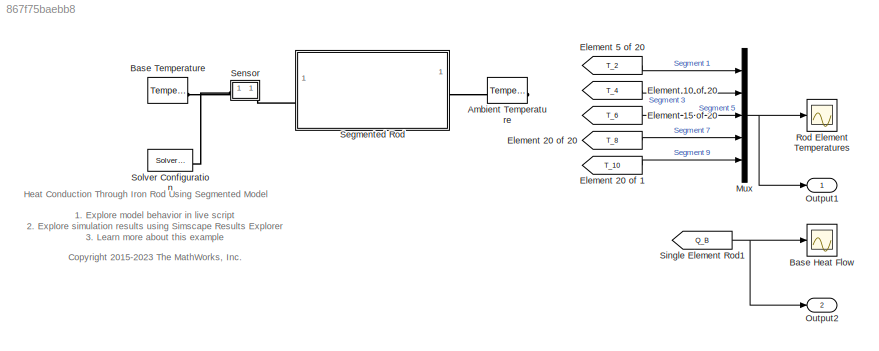
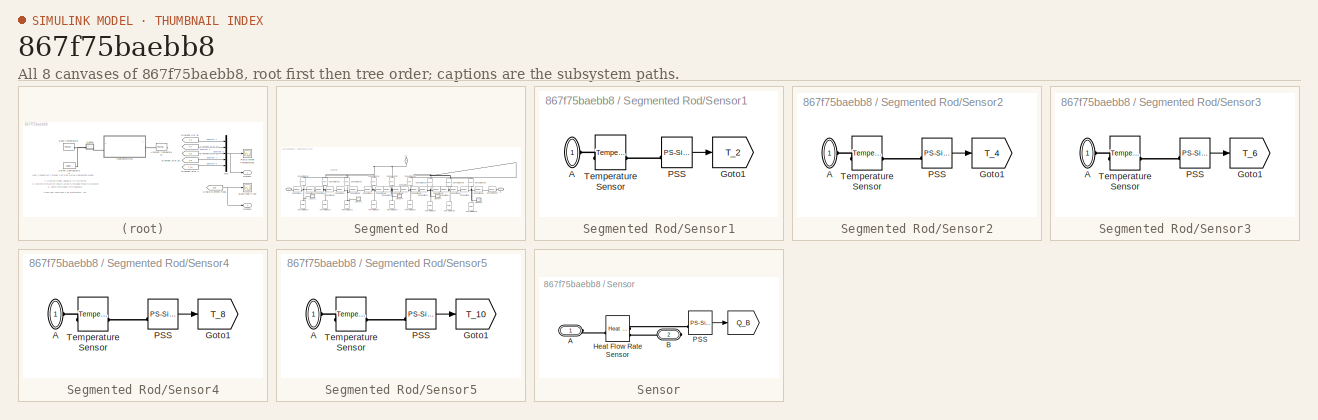
[diagram: thumbnail index - all 8 canvases of the model, root first then tree order]
MODEL slx_867f75baebb8
KIND model
CONFIG AbsTol = 1e-3
CONFIG EnableMultiTasking = on
CONFIG FixedStep = auto
CONFIG MaxStep = 100
CONFIG MinStep = auto
CONFIG PreLoadFcn = if ~exist('D', 'var')            D= 0.025;         end % [m]\nif ~exist('L', 'var')            L= 0.2;           end % [m]\nif ~exist('A', 'var')            A= pi*D^2/4;      end % [m^2]\nif ~exist('A_cyl', 'var')        A_cyl= pi*D*L;    end % [m^2]\nif ~exist('k', 'var')            k= 80.2;          end % [W/(K*m)]\nif ~exist('h', 'var')            h= 32.1;          end % [W/(K*m)]\nif ~exist('m', 'va...<+365ch>
CONFIG RelTol = 1e-3
CONFIG SampleTimeConstraint = Unconstrained
CONFIG SolverName = VariableStepAuto
CONFIG StartTime = 0.0
CONFIG StopTime = 2500
BLOCK [Reference] Ambient Temperature  REF=fl_lib/Thermal/Thermal Sources/Temperature Source
  SourceBlock = fl_lib/Thermal/Thermal Sources/Temperature Source
  SourceType = Temperature Source
BLOCK [Scope] Base Heat Flow
  Floating = off
  NumInputPorts = 1
  ScopeSpecificationString = Simulink.scopes.TimeScopeBlockCfg('CurrentConfiguration', extmgr.ConfigurationSet(extmgr.Configuration('Core','General UI',true,'FigureColor',[0.501960784313725 0.501960784313725 0.501960784313725]),extmgr.Configuration('Core','Source UI',true),extmgr.Configuration('Sources','WiredSimulink',true,'DataLoggingSaveFormat','StructureWithTime','DataLoggingLimitDataPoints',true,'DataLoggingDecimation','...<+2819ch>
  Tag = PublishScope
BLOCK [Reference] Base Temperature  REF=fl_lib/Thermal/Thermal Sources/Temperature Source
  SourceBlock = fl_lib/Thermal/Thermal Sources/Temperature Source
  SourceType = Temperature Source
BLOCK [From] Element   5 of 20
  GotoTag = T_2
  Tag = CustomStyle
  TagVisibility = global
BLOCK [From] Element 10 of 20
  GotoTag = T_4
  Tag = CustomStyle
  TagVisibility = global
BLOCK [From] Element 15 of 20
  GotoTag = T_6
  Tag = CustomStyle
  TagVisibility = global
BLOCK [From] Element 20 of 1
  GotoTag = T_10
  Tag = CustomStyle
  TagVisibility = global
BLOCK [From] Element 20 of 20
  GotoTag = T_8
  Tag = CustomStyle
  TagVisibility = global
BLOCK [Mux] Mux
  DisplayOption = bar
  Inputs = 5
BLOCK [Outport] Output1
BLOCK [Outport] Output2
  Port = 2
BLOCK [Scope] Rod Element Temperatures
  Floating = off
  NumInputPorts = 1
  ScopeSpecificationString = Simulink.scopes.TimeScopeBlockCfg('CurrentConfiguration', extmgr.ConfigurationSet(extmgr.Configuration('Core','General UI',true,'FigureColor',[0.501960784313725 0.501960784313725 0.501960784313725]),extmgr.Configuration('Core','Source UI',true),extmgr.Configuration('Sources','WiredSimulink',true,'DataLoggingSaveFormat','StructureWithTime','DataLoggingLimitDataPoints',true,'DataLoggingDecimation','...<+2803ch>
  Tag = PublishScope
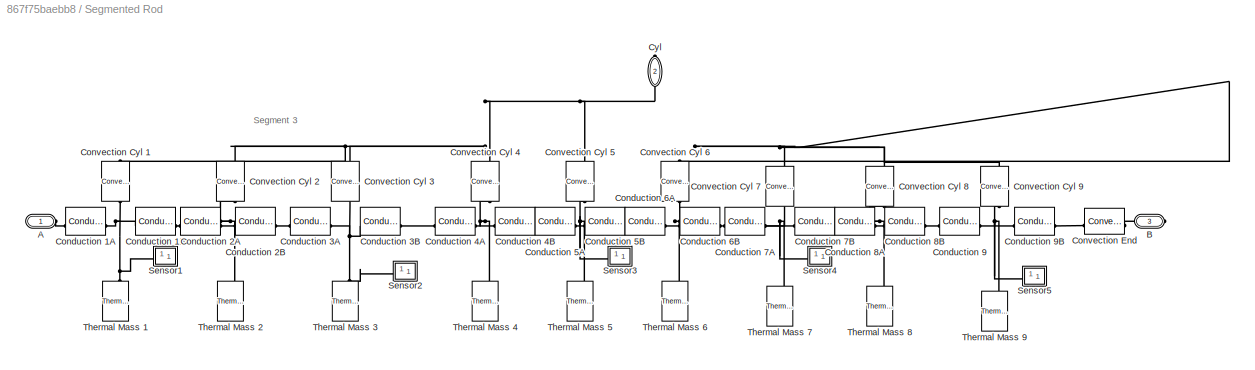
BLOCK [SubSystem] Segmented Rod
  Tag = PublishSubsystem
BLOCK [PMIOPort] Segmented Rod/A
  Side = Left
BLOCK [PMIOPort] Segmented Rod/B
  Port = 3
  Side = Right
BLOCK [Reference] Segmented Rod/Conduction 1A  REF=fl_lib/Thermal/Thermal Elements/Conductive Heat
Transfer
  SourceBlock = fl_lib/Thermal/Thermal Elements/Conductive Heat\nTransfer
  SourceType = Conductive Heat\nTransfer
BLOCK [Reference] Segmented Rod/Conduction 1B  REF=fl_lib/Thermal/Thermal Elements/Conductive Heat
Transfer
  SourceBlock = fl_lib/Thermal/Thermal Elements/Conductive Heat\nTransfer
  SourceType = Conductive Heat\nTransfer
BLOCK [Reference] Segmented Rod/Conduction 2A  REF=fl_lib/Thermal/Thermal Elements/Conductive Heat
Transfer
  SourceBlock = fl_lib/Thermal/Thermal Elements/Conductive Heat\nTransfer
  SourceType = Conductive Heat\nTransfer
BLOCK [Reference] Segmented Rod/Conduction 2B  REF=fl_lib/Thermal/Thermal Elements/Conductive Heat
Transfer
  SourceBlock = fl_lib/Thermal/Thermal Elements/Conductive Heat\nTransfer
  SourceType = Conductive Heat\nTransfer
BLOCK [Reference] Segmented Rod/Conduction 3A  REF=fl_lib/Thermal/Thermal Elements/Conductive Heat
Transfer
  SourceBlock = fl_lib/Thermal/Thermal Elements/Conductive Heat\nTransfer
  SourceType = Conductive Heat\nTransfer
BLOCK [Reference] Segmented Rod/Conduction 3B  REF=fl_lib/Thermal/Thermal Elements/Conductive Heat
Transfer
  SourceBlock = fl_lib/Thermal/Thermal Elements/Conductive Heat\nTransfer
  SourceType = Conductive Heat\nTransfer
BLOCK [Reference] Segmented Rod/Conduction 4A  REF=fl_lib/Thermal/Thermal Elements/Conductive Heat
Transfer
  SourceBlock = fl_lib/Thermal/Thermal Elements/Conductive Heat\nTransfer
  SourceType = Conductive Heat\nTransfer
BLOCK [Reference] Segmented Rod/Conduction 4B  REF=fl_lib/Thermal/Thermal Elements/Conductive Heat
Transfer
  SourceBlock = fl_lib/Thermal/Thermal Elements/Conductive Heat\nTransfer
  SourceType = Conductive Heat\nTransfer
BLOCK [Reference] Segmented Rod/Conduction 5A  REF=fl_lib/Thermal/Thermal Elements/Conductive Heat
Transfer
  SourceBlock = fl_lib/Thermal/Thermal Elements/Conductive Heat\nTransfer
  SourceType = Conductive Heat\nTransfer
BLOCK [Reference] Segmented Rod/Conduction 5B  REF=fl_lib/Thermal/Thermal Elements/Conductive Heat
Transfer
  SourceBlock = fl_lib/Thermal/Thermal Elements/Conductive Heat\nTransfer
  SourceType = Conductive Heat\nTransfer
BLOCK [Reference] Segmented Rod/Conduction 6A  REF=fl_lib/Thermal/Thermal Elements/Conductive Heat
Transfer
  SourceBlock = fl_lib/Thermal/Thermal Elements/Conductive Heat\nTransfer
  SourceType = Conductive Heat\nTransfer
BLOCK [Reference] Segmented Rod/Conduction 6B  REF=fl_lib/Thermal/Thermal Elements/Conductive Heat
Transfer
  SourceBlock = fl_lib/Thermal/Thermal Elements/Conductive Heat\nTransfer
  SourceType = Conductive Heat\nTransfer
BLOCK [Reference] Segmented Rod/Conduction 7A  REF=fl_lib/Thermal/Thermal Elements/Conductive Heat
Transfer
  SourceBlock = fl_lib/Thermal/Thermal Elements/Conductive Heat\nTransfer
  SourceType = Conductive Heat\nTransfer
BLOCK [Reference] Segmented Rod/Conduction 7B  REF=fl_lib/Thermal/Thermal Elements/Conductive Heat
Transfer
  SourceBlock = fl_lib/Thermal/Thermal Elements/Conductive Heat\nTransfer
  SourceType = Conductive Heat\nTransfer
BLOCK [Reference] Segmented Rod/Conduction 8A  REF=fl_lib/Thermal/Thermal Elements/Conductive Heat
Transfer
  SourceBlock = fl_lib/Thermal/Thermal Elements/Conductive Heat\nTransfer
  SourceType = Conductive Heat\nTransfer
BLOCK [Reference] Segmented Rod/Conduction 8B  REF=fl_lib/Thermal/Thermal Elements/Conductive Heat
Transfer
  SourceBlock = fl_lib/Thermal/Thermal Elements/Conductive Heat\nTransfer
  SourceType = Conductive Heat\nTransfer
BLOCK [Reference] Segmented Rod/Conduction 9  REF=fl_lib/Thermal/Thermal Elements/Conductive Heat
Transfer
  SourceBlock = fl_lib/Thermal/Thermal Elements/Conductive Heat\nTransfer
  SourceType = Conductive Heat\nTransfer
BLOCK [Reference] Segmented Rod/Conduction 9B  REF=fl_lib/Thermal/Thermal Elements/Conductive Heat
Transfer
  SourceBlock = fl_lib/Thermal/Thermal Elements/Conductive Heat\nTransfer
  SourceType = Conductive Heat\nTransfer
BLOCK [Reference] Segmented Rod/Convection Cyl 1  REF=fl_lib/Thermal/Thermal Elements/Convective Heat
Transfer
  NameLocation = left
  SourceBlock = fl_lib/Thermal/Thermal Elements/Convective Heat\nTransfer
  SourceType = Convective Heat\nTransfer
BLOCK [Reference] Segmented Rod/Convection Cyl 2  REF=fl_lib/Thermal/Thermal Elements/Convective Heat
Transfer
  NameLocation = right
  SourceBlock = fl_lib/Thermal/Thermal Elements/Convective Heat\nTransfer
  SourceType = Convective Heat\nTransfer
BLOCK [Reference] Segmented Rod/Convection Cyl 3  REF=fl_lib/Thermal/Thermal Elements/Convective Heat
Transfer
  NameLocation = right
  SourceBlock = fl_lib/Thermal/Thermal Elements/Convective Heat\nTransfer
  SourceType = Convective Heat\nTransfer
BLOCK [Reference] Segmented Rod/Convection Cyl 4  REF=fl_lib/Thermal/Thermal Elements/Convective Heat
Transfer
  NameLocation = right
  SourceBlock = fl_lib/Thermal/Thermal Elements/Convective Heat\nTransfer
  SourceType = Convective Heat\nTransfer
BLOCK [Reference] Segmented Rod/Convection Cyl 5  REF=fl_lib/Thermal/Thermal Elements/Convective Heat
Transfer
  NameLocation = right
  SourceBlock = fl_lib/Thermal/Thermal Elements/Convective Heat\nTransfer
  SourceType = Convective Heat\nTransfer
BLOCK [Reference] Segmented Rod/Convection Cyl 6  REF=fl_lib/Thermal/Thermal Elements/Convective Heat
Transfer
  NameLocation = right
  SourceBlock = fl_lib/Thermal/Thermal Elements/Convective Heat\nTransfer
  SourceType = Convective Heat\nTransfer
BLOCK [Reference] Segmented Rod/Convection Cyl 7  REF=fl_lib/Thermal/Thermal Elements/Convective Heat
Transfer
  NameLocation = right
  SourceBlock = fl_lib/Thermal/Thermal Elements/Convective Heat\nTransfer
  SourceType = Convective Heat\nTransfer
BLOCK [Reference] Segmented Rod/Convection Cyl 8  REF=fl_lib/Thermal/Thermal Elements/Convective Heat
Transfer
  NameLocation = right
  SourceBlock = fl_lib/Thermal/Thermal Elements/Convective Heat\nTransfer
  SourceType = Convective Heat\nTransfer
BLOCK [Reference] Segmented Rod/Convection Cyl 9  REF=fl_lib/Thermal/Thermal Elements/Convective Heat
Transfer
  NameLocation = right
  SourceBlock = fl_lib/Thermal/Thermal Elements/Convective Heat\nTransfer
  SourceType = Convective Heat\nTransfer
BLOCK [Reference] Segmented Rod/Convection End  REF=fl_lib/Thermal/Thermal Elements/Convective Heat
Transfer
  SourceBlock = fl_lib/Thermal/Thermal Elements/Convective Heat\nTransfer
  SourceType = Convective Heat\nTransfer
BLOCK [PMIOPort] Segmented Rod/Cyl
  NameLocation = right
  Port = 2
  Side = Right
BLOCK [SubSystem] Segmented Rod/Sensor1
BLOCK [PMIOPort] Segmented Rod/Sensor1/A
  Side = Left
BLOCK [Goto] Segmented Rod/Sensor1/Goto1
  GotoTag = T_2
  Tag = CustomStyle
  TagVisibility = global
BLOCK [Reference] Segmented Rod/Sensor1/PSS  REF=nesl_utility/PS-Simulink
Converter
  SourceBlock = nesl_utility/PS-Simulink\nConverter
  SourceType = PS-Simulink\nConverter
BLOCK [Reference] Segmented Rod/Sensor1/Temperature Sensor  REF=fl_lib/Thermal/Thermal Sensors/Temperature Sensor
  SourceBlock = fl_lib/Thermal/Thermal Sensors/Temperature Sensor
  SourceType = Temperature Sensor
BLOCK [SubSystem] Segmented Rod/Sensor2
BLOCK [PMIOPort] Segmented Rod/Sensor2/A
  Side = Left
BLOCK [Goto] Segmented Rod/Sensor2/Goto1
  GotoTag = T_4
  Tag = CustomStyle
  TagVisibility = global
BLOCK [Reference] Segmented Rod/Sensor2/PSS  REF=nesl_utility/PS-Simulink
Converter
  SourceBlock = nesl_utility/PS-Simulink\nConverter
  SourceType = PS-Simulink\nConverter
BLOCK [Reference] Segmented Rod/Sensor2/Temperature Sensor  REF=fl_lib/Thermal/Thermal Sensors/Temperature Sensor
  SourceBlock = fl_lib/Thermal/Thermal Sensors/Temperature Sensor
  SourceType = Temperature Sensor
BLOCK [SubSystem] Segmented Rod/Sensor3
BLOCK [PMIOPort] Segmented Rod/Sensor3/A
  Side = Left
BLOCK [Goto] Segmented Rod/Sensor3/Goto1
  GotoTag = T_6
  Tag = CustomStyle
  TagVisibility = global
BLOCK [Reference] Segmented Rod/Sensor3/PSS  REF=nesl_utility/PS-Simulink
Converter
  SourceBlock = nesl_utility/PS-Simulink\nConverter
  SourceType = PS-Simulink\nConverter
BLOCK [Reference] Segmented Rod/Sensor3/Temperature Sensor  REF=fl_lib/Thermal/Thermal Sensors/Temperature Sensor
  SourceBlock = fl_lib/Thermal/Thermal Sensors/Temperature Sensor
  SourceType = Temperature Sensor
BLOCK [SubSystem] Segmented Rod/Sensor4
BLOCK [PMIOPort] Segmented Rod/Sensor4/A
  Side = Left
BLOCK [Goto] Segmented Rod/Sensor4/Goto1
  GotoTag = T_8
  Tag = CustomStyle
  TagVisibility = global
BLOCK [Reference] Segmented Rod/Sensor4/PSS  REF=nesl_utility/PS-Simulink
Converter
  SourceBlock = nesl_utility/PS-Simulink\nConverter
  SourceType = PS-Simulink\nConverter
BLOCK [Reference] Segmented Rod/Sensor4/Temperature Sensor  REF=fl_lib/Thermal/Thermal Sensors/Temperature Sensor
  SourceBlock = fl_lib/Thermal/Thermal Sensors/Temperature Sensor
  SourceType = Temperature Sensor
BLOCK [SubSystem] Segmented Rod/Sensor5
BLOCK [PMIOPort] Segmented Rod/Sensor5/A
  Side = Left
BLOCK [Goto] Segmented Rod/Sensor5/Goto1
  GotoTag = T_10
  Tag = CustomStyle
  TagVisibility = global
BLOCK [Reference] Segmented Rod/Sensor5/PSS  REF=nesl_utility/PS-Simulink
Converter
  SourceBlock = nesl_utility/PS-Simulink\nConverter
  SourceType = PS-Simulink\nConverter
BLOCK [Reference] Segmented Rod/Sensor5/Temperature Sensor  REF=fl_lib/Thermal/Thermal Sensors/Temperature Sensor
  SourceBlock = fl_lib/Thermal/Thermal Sensors/Temperature Sensor
  SourceType = Temperature Sensor
BLOCK [Reference] Segmented Rod/Thermal Mass 1  REF=fl_lib/Thermal/Thermal Elements/Thermal Mass
  NameLocation = left
  SourceBlock = fl_lib/Thermal/Thermal Elements/Thermal Mass
  SourceType = Thermal Mass
BLOCK [Reference] Segmented Rod/Thermal Mass 2  REF=fl_lib/Thermal/Thermal Elements/Thermal Mass
  NameLocation = right
  SourceBlock = fl_lib/Thermal/Thermal Elements/Thermal Mass
  SourceType = Thermal Mass
BLOCK [Reference] Segmented Rod/Thermal Mass 3  REF=fl_lib/Thermal/Thermal Elements/Thermal Mass
  NameLocation = left
  SourceBlock = fl_lib/Thermal/Thermal Elements/Thermal Mass
  SourceType = Thermal Mass
BLOCK [Reference] Segmented Rod/Thermal Mass 4  REF=fl_lib/Thermal/Thermal Elements/Thermal Mass
  NameLocation = right
  SourceBlock = fl_lib/Thermal/Thermal Elements/Thermal Mass
  SourceType = Thermal Mass
BLOCK [Reference] Segmented Rod/Thermal Mass 5  REF=fl_lib/Thermal/Thermal Elements/Thermal Mass
  NameLocation = right
  SourceBlock = fl_lib/Thermal/Thermal Elements/Thermal Mass
  SourceType = Thermal Mass
BLOCK [Reference] Segmented Rod/Thermal Mass 6  REF=fl_lib/Thermal/Thermal Elements/Thermal Mass
  NameLocation = right
  SourceBlock = fl_lib/Thermal/Thermal Elements/Thermal Mass
  SourceType = Thermal Mass
BLOCK [Reference] Segmented Rod/Thermal Mass 7  REF=fl_lib/Thermal/Thermal Elements/Thermal Mass
  NameLocation = right
  SourceBlock = fl_lib/Thermal/Thermal Elements/Thermal Mass
  SourceType = Thermal Mass
BLOCK [Reference] Segmented Rod/Thermal Mass 8  REF=fl_lib/Thermal/Thermal Elements/Thermal Mass
  NameLocation = right
  SourceBlock = fl_lib/Thermal/Thermal Elements/Thermal Mass
  SourceType = Thermal Mass
BLOCK [Reference] Segmented Rod/Thermal Mass 9  REF=fl_lib/Thermal/Thermal Elements/Thermal Mass
  NameLocation = left
  SourceBlock = fl_lib/Thermal/Thermal Elements/Thermal Mass
  SourceType = Thermal Mass
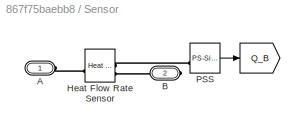
BLOCK [SubSystem] Sensor
BLOCK [Goto] Sensor/ 
  GotoTag = Q_B
  Tag = CustomStyle
  TagVisibility = global
BLOCK [PMIOPort] Sensor/A
  Side = Left
BLOCK [PMIOPort] Sensor/B
  Port = 2
  Side = Right
BLOCK [Reference] Sensor/Heat Flow Rate Sensor  REF=fl_lib/Thermal/Thermal Sensors/Heat Flow Rate
Sensor
  SourceBlock = fl_lib/Thermal/Thermal Sensors/Heat Flow Rate\nSensor
  SourceType = Heat Flow Rate\nSensor
BLOCK [Reference] Sensor/PSS  REF=nesl_utility/PS-Simulink
Converter
  SourceBlock = nesl_utility/PS-Simulink\nConverter
  SourceType = PS-Simulink\nConverter
BLOCK [From] Single Element Rod1
  GotoTag = Q_B
  Tag = CustomStyle
  TagVisibility = global
BLOCK [Reference] Solver Configuration  REF=nesl_utility/Solver
Configuration
  NameLocation = left
  SourceBlock = nesl_utility/Solver\nConfiguration
  SourceType = Solver\nConfiguration
ANNOTATION (root): 1. Explore model behavior in live script 2. Explore simulation results using Simscape Results Explorer 3. Learn more about this example
ANNOTATION (root): <copyright redacted>
ANNOTATION (root): Heat Conduction Through Iron Rod Using Segmented Model
ANNOTATION Segmented Rod: Segment 3
LINE Element   5 of 20:1 -> Mux:1
LINE Element 10 of 20:1 -> Mux:2
LINE Element 15 of 20:1 -> Mux:3
LINE Element 20 of 1:1 -> Mux:5
LINE Element 20 of 20:1 -> Mux:4
NET Mux:1 -> Output1:1, Rod Element Temperatures:1
LINE Segmented Rod/Sensor1/PSS:1 -> Segmented Rod/Sensor1/Goto1:1
LINE Segmented Rod/Sensor2/PSS:1 -> Segmented Rod/Sensor2/Goto1:1
LINE Segmented Rod/Sensor3/PSS:1 -> Segmented Rod/Sensor3/Goto1:1
LINE Segmented Rod/Sensor4/PSS:1 -> Segmented Rod/Sensor4/Goto1:1
LINE Segmented Rod/Sensor5/PSS:1 -> Segmented Rod/Sensor5/Goto1:1
LINE Sensor/PSS:1 -> Sensor/ :1
NET Single Element Rod1:1 -> Base Heat Flow:1, Output2:1
PNET net1: Ambient Temperature:LConn1 -- Segmented Rod:RConn1 -- Segmented Rod:RConn2
PNET net2: Base Temperature:LConn1 -- Sensor:LConn1 -- Solver Configuration:RConn1
PLINE Segmented Rod/A:RConn1 -- Segmented Rod/Conduction 1A:LConn1
PLINE Segmented Rod/B:RConn1 -- Segmented Rod/Convection End:RConn1
PNET net3: Segmented Rod/Conduction 1A:RConn1 -- Segmented Rod/Conduction 1B:LConn1 -- Segmented Rod/Convection Cyl 1:LConn1 -- Segmented Rod/Sensor1:LConn1 -- Segmented Rod/Thermal Mass 1:LConn1
PLINE Segmented Rod/Conduction 1B:RConn1 -- Segmented Rod/Conduction 2A:LConn1
PNET net4: Segmented Rod/Conduction 2A:RConn1 -- Segmented Rod/Conduction 2B:LConn1 -- Segmented Rod/Convection Cyl 2:LConn1 -- Segmented Rod/Thermal Mass 2:LConn1
PLINE Segmented Rod/Conduction 2B:RConn1 -- Segmented Rod/Conduction 3A:LConn1
PNET net5: Segmented Rod/Conduction 3A:RConn1 -- Segmented Rod/Conduction 3B:LConn1 -- Segmented Rod/Convection Cyl 3:LConn1 -- Segmented Rod/Sensor2:LConn1 -- Segmented Rod/Thermal Mass 3:LConn1
PLINE Segmented Rod/Conduction 3B:RConn1 -- Segmented Rod/Conduction 4A:LConn1
PNET net6: Segmented Rod/Conduction 4A:RConn1 -- Segmented Rod/Conduction 4B:LConn1 -- Segmented Rod/Convection Cyl 4:LConn1 -- Segmented Rod/Thermal Mass 4:LConn1
PLINE Segmented Rod/Conduction 4B:RConn1 -- Segmented Rod/Conduction 5A:LConn1
PNET net7: Segmented Rod/Conduction 5A:RConn1 -- Segmented Rod/Conduction 5B:LConn1 -- Segmented Rod/Convection Cyl 5:LConn1 -- Segmented Rod/Sensor3:LConn1 -- Segmented Rod/Thermal Mass 5:LConn1
PLINE Segmented Rod/Conduction 5B:RConn1 -- Segmented Rod/Conduction 6A:LConn1
PNET net8: Segmented Rod/Conduction 6A:RConn1 -- Segmented Rod/Conduction 6B:LConn1 -- Segmented Rod/Convection Cyl 6:LConn1 -- Segmented Rod/Thermal Mass 6:LConn1
PLINE Segmented Rod/Conduction 6B:RConn1 -- Segmented Rod/Conduction 7A:LConn1
PNET net9: Segmented Rod/Conduction 7A:RConn1 -- Segmented Rod/Conduction 7B:LConn1 -- Segmented Rod/Convection Cyl 7:LConn1 -- Segmented Rod/Sensor4:LConn1 -- Segmented Rod/Thermal Mass 7:LConn1
PLINE Segmented Rod/Conduction 7B:RConn1 -- Segmented Rod/Conduction 8A:LConn1
PNET net10: Segmented Rod/Conduction 8A:RConn1 -- Segmented Rod/Conduction 8B:LConn1 -- Segmented Rod/Convection Cyl 8:LConn1 -- Segmented Rod/Thermal Mass 8:LConn1
PLINE Segmented Rod/Conduction 8B:RConn1 -- Segmented Rod/Conduction 9:LConn1
PNET net11: Segmented Rod/Conduction 9:RConn1 -- Segmented Rod/Conduction 9B:LConn1 -- Segmented Rod/Convection Cyl 9:LConn1 -- Segmented Rod/Sensor5:LConn1 -- Segmented Rod/Thermal Mass 9:LConn1
PLINE Segmented Rod/Conduction 9B:RConn1 -- Segmented Rod/Convection End:LConn1
PNET net12: Segmented Rod/Convection Cyl 1:RConn1 -- Segmented Rod/Convection Cyl 2:RConn1 -- Segmented Rod/Convection Cyl 3:RConn1 -- Segmented Rod/Convection Cyl 4:RConn1 -- Segmented Rod/Convection Cyl 5:RConn1 -- Segmented Rod/Convection Cyl 6:RConn1 -- Segmented Rod/Convection Cyl 7:RConn1 -- Segmented Rod/Convection Cyl 8:RConn1 -- Segmented Rod/Convection Cyl 9:RConn1 -- Segmented Rod/Cyl:RConn1
PLINE Segmented Rod/Sensor1/A:RConn1 -- Segmented Rod/Sensor1/Temperature Sensor:LConn1
PLINE Segmented Rod/Sensor1/PSS:LConn1 -- Segmented Rod/Sensor1/Temperature Sensor:RConn1
PLINE Segmented Rod/Sensor2/A:RConn1 -- Segmented Rod/Sensor2/Temperature Sensor:LConn1
PLINE Segmented Rod/Sensor2/PSS:LConn1 -- Segmented Rod/Sensor2/Temperature Sensor:RConn1
PLINE Segmented Rod/Sensor3/A:RConn1 -- Segmented Rod/Sensor3/Temperature Sensor:LConn1
PLINE Segmented Rod/Sensor3/PSS:LConn1 -- Segmented Rod/Sensor3/Temperature Sensor:RConn1
PLINE Segmented Rod/Sensor4/A:RConn1 -- Segmented Rod/Sensor4/Temperature Sensor:LConn1
PLINE Segmented Rod/Sensor4/PSS:LConn1 -- Segmented Rod/Sensor4/Temperature Sensor:RConn1
PLINE Segmented Rod/Sensor5/A:RConn1 -- Segmented Rod/Sensor5/Temperature Sensor:LConn1
PLINE Segmented Rod/Sensor5/PSS:LConn1 -- Segmented Rod/Sensor5/Temperature Sensor:RConn1
PLINE Segmented Rod:LConn1 -- Sensor:RConn1
PLINE Sensor/A:RConn1 -- Sensor/Heat Flow Rate Sensor:LConn1
PLINE Sensor/B:RConn1 -- Sensor/Heat Flow Rate Sensor:RConn2
PLINE Sensor/Heat Flow Rate Sensor:RConn1 -- Sensor/PSS:LConn1
note: NET lines group one-source signal fan-out (src -> all destinations, sorted); 1:1 wires keep LINE; PNET lines group multi-terminal physical nets as a canonical sorted terminal list (undirected conserving connections); 2-terminal nets keep the pairwise PLINE form
